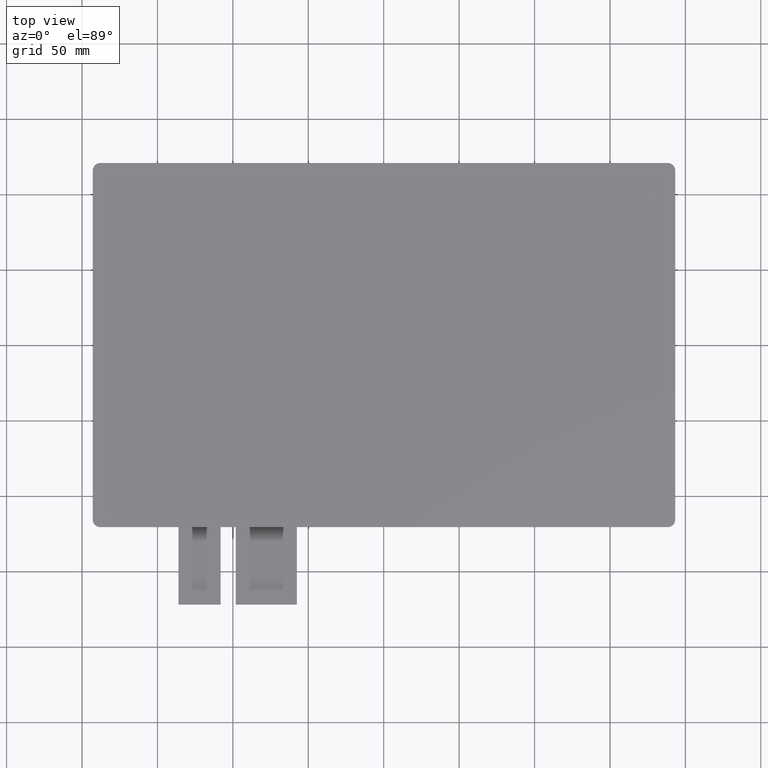
[diagram: clean part render]
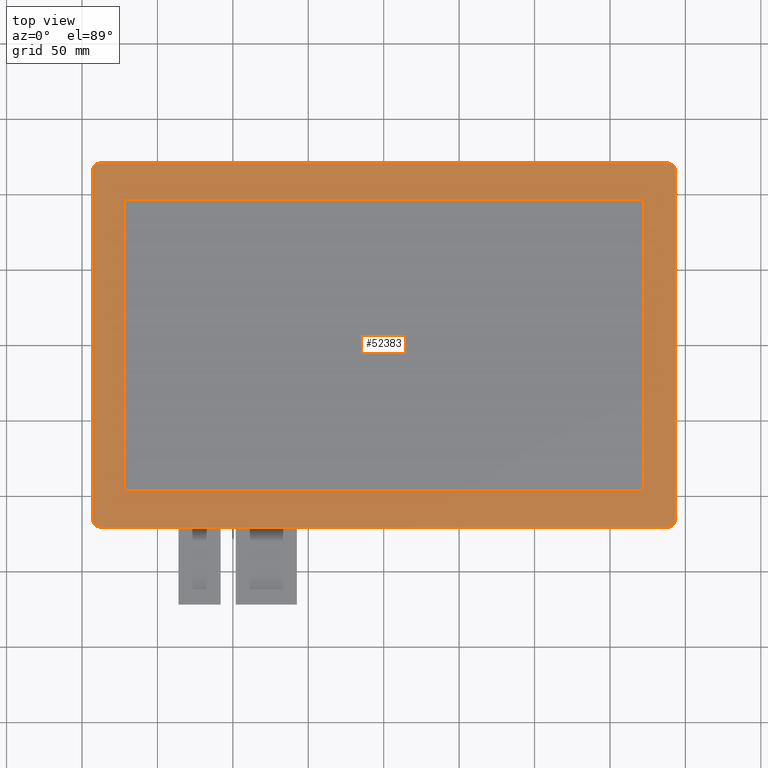
[diagram: same view with one face highlighted and labeled with its STEP entity id]
A machine part, top view. The second image highlights one B-rep face of the part: STEP entity #52383.
In plain terms, the highlighted planar face has unit normal (0, 0, 1).
Its self-contained STEP definition (entity closure, byte-faithful):
#516=FACE_BOUND('',#3389,.T.);
#668=FACE_OUTER_BOUND('',#3388,.T.);
#3388=EDGE_LOOP('',(#34273,#34274,#34275,#34276,#34277,#34278,#34279,#34280));
#3389=EDGE_LOOP('',(#34281,#34282,#34283,#34284));
#6261=CIRCLE('',#55129,5.);
#6262=CIRCLE('',#55130,5.);
#6263=CIRCLE('',#55131,5.);
#6264=CIRCLE('',#55132,5.);
#6958=LINE('',#72615,#14057);
#6959=LINE('',#72619,#14058);
#6960=LINE('',#72623,#14059);
#6961=LINE('',#72627,#14060);
#6962=LINE('',#72631,#14061);
#6963=LINE('',#72633,#14062);
#6964=LINE('',#72635,#14063);
#6965=LINE('',#72636,#14064);
#14057=VECTOR('',#58599,10.);
#14058=VECTOR('',#58602,10.);
#14059=VECTOR('',#58605,10.);
#14060=VECTOR('',#58608,10.);
#14061=VECTOR('',#58611,10.);
#14062=VECTOR('',#58612,10.);
#14063=VECTOR('',#58613,10.);
#14064=VECTOR('',#58614,10.);
#21160=VERTEX_POINT('',#72613);
#21161=VERTEX_POINT('',#72614);
#21162=VERTEX_POINT('',#72616);
#21163=VERTEX_POINT('',#72618);
#21164=VERTEX_POINT('',#72620);
#21165=VERTEX_POINT('',#72622);
#21166=VERTEX_POINT('',#72624);
#21167=VERTEX_POINT('',#72626);
#21168=VERTEX_POINT('',#72629);
#21169=VERTEX_POINT('',#72630);
#21170=VERTEX_POINT('',#72632);
#21171=VERTEX_POINT('',#72634);
#26375=EDGE_CURVE('',#21160,#21161,#6958,.T.);
#26376=EDGE_CURVE('',#21161,#21162,#6261,.T.);
#26377=EDGE_CURVE('',#21162,#21163,#6959,.T.);
#26378=EDGE_CURVE('',#21163,#21164,#6262,.T.);
#26379=EDGE_CURVE('',#21164,#21165,#6960,.T.);
#26380=EDGE_CURVE('',#21165,#21166,#6263,.T.);
#26381=EDGE_CURVE('',#21166,#21167,#6961,.T.);
#26382=EDGE_CURVE('',#21167,#21160,#6264,.T.);
#26383=EDGE_CURVE('',#21168,#21169,#6962,.T.);
#26384=EDGE_CURVE('',#21169,#21170,#6963,.T.);
#26385=EDGE_CURVE('',#21170,#21171,#6964,.T.);
#26386=EDGE_CURVE('',#21171,#21168,#6965,.T.);
#34273=ORIENTED_EDGE('',*,*,#26375,.T.);
#34274=ORIENTED_EDGE('',*,*,#26376,.T.);
#34275=ORIENTED_EDGE('',*,*,#26377,.T.);
#34276=ORIENTED_EDGE('',*,*,#26378,.T.);
#34277=ORIENTED_EDGE('',*,*,#26379,.T.);
#34278=ORIENTED_EDGE('',*,*,#26380,.T.);
#34279=ORIENTED_EDGE('',*,*,#26381,.T.);
#34280=ORIENTED_EDGE('',*,*,#26382,.T.);
#34281=ORIENTED_EDGE('',*,*,#26383,.T.);
#34282=ORIENTED_EDGE('',*,*,#26384,.T.);
#34283=ORIENTED_EDGE('',*,*,#26385,.T.);
#34284=ORIENTED_EDGE('',*,*,#26386,.T.);
#50058=PLANE('',#55128);
#52383=ADVANCED_FACE('',(#668,#516),#50058,.T.);
#55128=AXIS2_PLACEMENT_3D('',#72612,#58597,#58598);
#55129=AXIS2_PLACEMENT_3D('',#72617,#58600,#58601);
#55130=AXIS2_PLACEMENT_3D('',#72621,#58603,#58604);
#55131=AXIS2_PLACEMENT_3D('',#72625,#58606,#58607);
#55132=AXIS2_PLACEMENT_3D('',#72628,#58609,#58610);
#58597=DIRECTION('center_axis',(0.,0.,1.));
#58598=DIRECTION('ref_axis',(1.,0.,0.));
#58599=DIRECTION('',(0.,-1.,0.));
#58600=DIRECTION('center_axis',(0.,0.,1.));
#58601=DIRECTION('ref_axis',(-1.,0.,0.));
#58602=DIRECTION('',(1.,-4.72184167836324E-17,0.));
#58603=DIRECTION('center_axis',(0.,0.,1.));
#58604=DIRECTION('ref_axis',(-7.105427357601E-15,-1.,0.));
#58605=DIRECTION('',(0.,1.,0.));
#58606=DIRECTION('center_axis',(0.,0.,1.));
#58607=DIRECTION('ref_axis',(1.,0.,0.));
#58608=DIRECTION('',(-1.,4.72184167836324E-17,0.));
#58609=DIRECTION('center_axis',(0.,0.,1.));
#58610=DIRECTION('ref_axis',(0.,1.,0.));
#58611=DIRECTION('',(1.,0.,0.));
#58612=DIRECTION('',(0.,-1.,0.));
#58613=DIRECTION('',(-1.,0.,0.));
#58614=DIRECTION('',(0.,1.,0.));
#72612=CARTESIAN_POINT('Origin',(0.19999999999999,-3.97928774743397E-15,
0.));
#72613=CARTESIAN_POINT('',(-192.9,115.7,0.));
#72614=CARTESIAN_POINT('',(-192.9,-115.7,0.));
#72615=CARTESIAN_POINT('',(-192.9,115.7,0.));
#72616=CARTESIAN_POINT('',(-187.9,-120.7,0.));
#72617=CARTESIAN_POINT('Origin',(-187.9,-115.7,0.));
#72618=CARTESIAN_POINT('',(188.3,-120.7,0.));
#72619=CARTESIAN_POINT('',(-187.9,-120.7,0.));
#72620=CARTESIAN_POINT('',(193.3,-115.7,0.));
#72621=CARTESIAN_POINT('Origin',(188.3,-115.7,0.));
#72622=CARTESIAN_POINT('',(193.3,115.7,0.));
#72623=CARTESIAN_POINT('',(193.3,-115.7,0.));
#72624=CARTESIAN_POINT('',(188.3,120.7,0.));
#72625=CARTESIAN_POINT('Origin',(188.3,115.7,0.));
#72626=CARTESIAN_POINT('',(-187.9,120.7,0.));
#72627=CARTESIAN_POINT('',(188.3,120.7,0.));
#72628=CARTESIAN_POINT('Origin',(-187.9,115.7,0.));
#72629=CARTESIAN_POINT('',(-172.15,96.8,0.));
#72630=CARTESIAN_POINT('',(172.15,96.8,0.));
#72631=CARTESIAN_POINT('',(86.175,96.8,0.));
#72632=CARTESIAN_POINT('',(172.15,-96.8,0.));
#72633=CARTESIAN_POINT('',(172.15,-48.4,0.));
#72634=CARTESIAN_POINT('',(-172.15,-96.8,0.));
#72635=CARTESIAN_POINT('',(-85.975,-96.8,0.));
#72636=CARTESIAN_POINT('',(-172.15,48.4,0.));